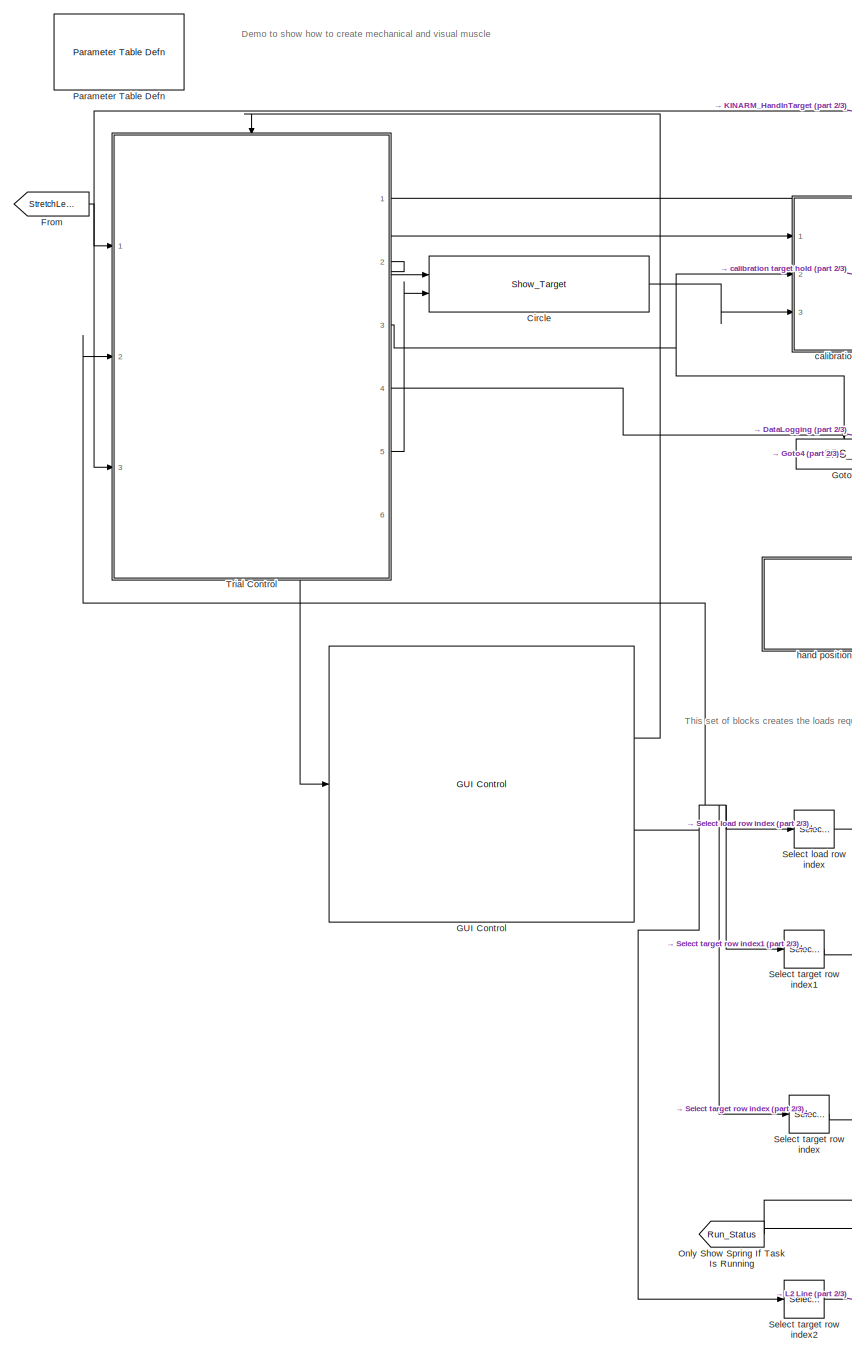
[diagram: root canvas - part 1/3, left side, full height]
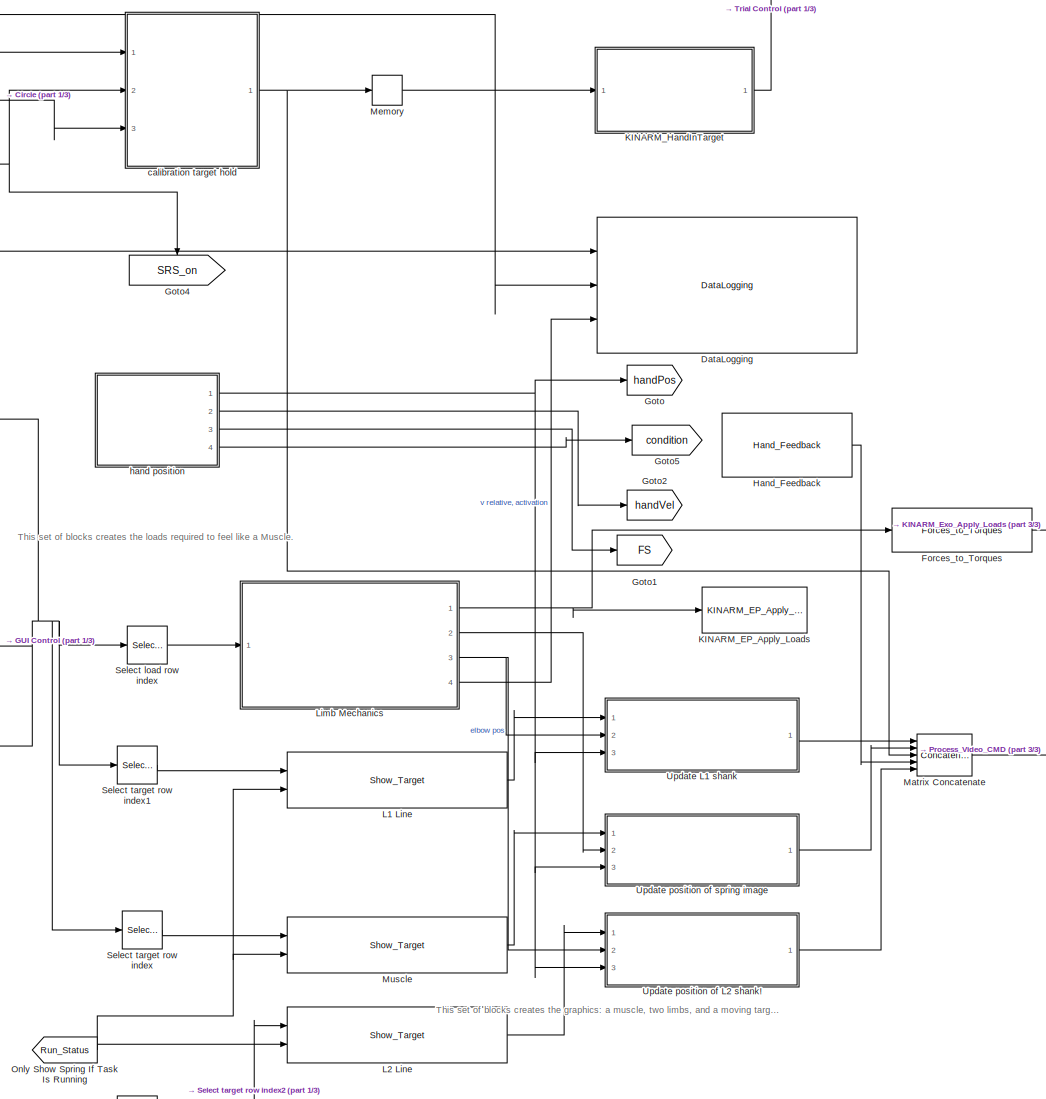
[diagram: root canvas - part 2/3, center side, full height]
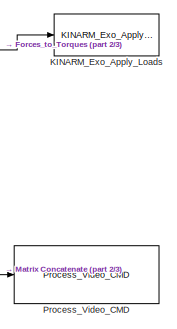
[diagram: root canvas - part 3/3, middle right region]
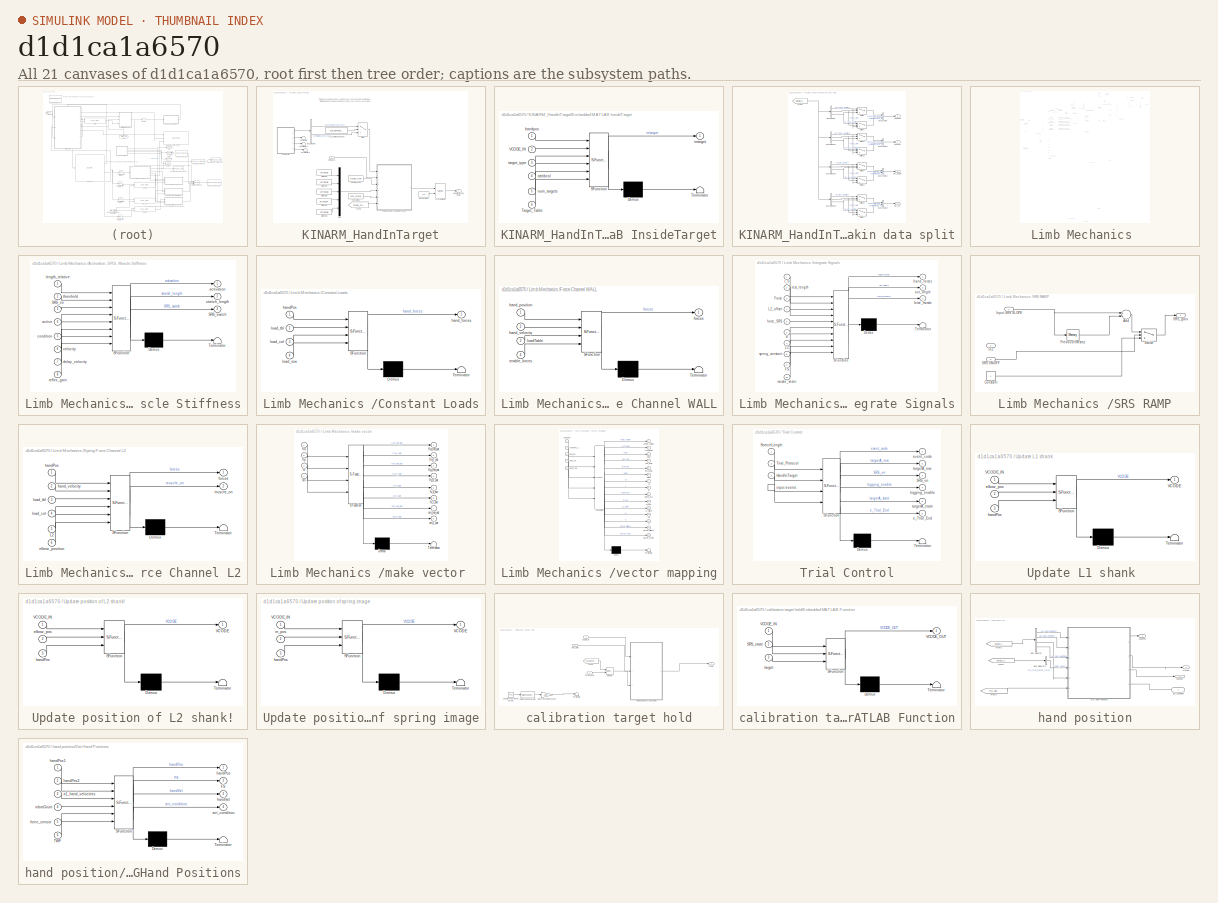
[diagram: thumbnail index - all 21 canvases of the model, root first then tree order]
MODEL slx_d1d1ca1a6570
KIND model
CONFIG AbsTol = auto
CONFIG EnableMultiTasking = on
CONFIG FixedStep = BKIN_STEP_TIME
CONFIG MaxStep = auto
CONFIG MinStep = auto
CONFIG RelTol = 1e-3
CONFIG SampleTimeConstraint = Unconstrained
CONFIG Solver = ode4
CONFIG SolverName = ode4
CONFIG StartFcn =  warndlg('Dexterit-E models cannot run under simulation. Please compile your model and run it from within Dexterit-E.');set_param(bdroot,'SimulationCommand','stop')
CONFIG StartTime = 0.0
CONFIG StopTime = inf
WORKSPACE source: mxarray member
WORKSPACE ACTIVE = 4
WORKSPACE AMPLITUDE = 7
WORKSPACE BASE_STIFFNESS = 12
WORKSPACE BKIN_KINEMATIC_FRAME_SIZE = 400
WORKSPACE BKIN_STEP_TIME = 0.00025
WORKSPACE COLOR_2 = 5
WORKSPACE CONDITION = 3
WORKSPACE DELAY_POST_TRIAL = 4
WORKSPACE DURATION = 5
WORKSPACE E_END_TRIAL = 2
WORKSPACE E_HAND_OUT = 4
WORKSPACE E_NO_EVENT = 0
WORKSPACE E_SHOW_TARGET = 3
WORKSPACE E_SRS_ON = 6
WORKSPACE E_START_TRIAL = 5
WORKSPACE E_TARGET_REACHED = 1
WORKSPACE HAND_OUT_TIME = 6
WORKSPACE IMAGE = 3
WORKSPACE INSERT_OFFSET = 8
WORKSPACE L1_LENGTH = 6
WORKSPACE L1_LINE = 7
WORKSPACE L2_LENGTH = 7
WORKSPACE L2_LINE = 8
WORKSPACE LOAD = 2
WORKSPACE MOVE_THRESHOLD = 10
WORKSPACE MUSCLE = 1
WORKSPACE MUSCLE_LENGTH = 1
WORKSPACE REFLEX = 9
WORKSPACE REFLEX_GAIN = 5
WORKSPACE RESTING_FORCE = 2
WORKSPACE SPEED = 6
WORKSPACE SPRING_X = 1
WORKSPACE SPRING_Y = 2
WORKSPACE SRS_GAIN = 13
WORKSPACE TARGET_1 = 3
WORKSPACE THICKNESS = 4
WORKSPACE V_MAX = 3
WORKSPACE WALL_DAMPING = 11
WORKSPACE WALL_STIFFNESS = 9
WORKSPACE activation = 1
WORKSPACE col_x = 1
WORKSPACE col_y = 2
BLOCK [Reference] Circle  REF=Video/Show_Target
  Ports = [2, 1]
  SourceBlock = Video/Show_Target
  SourceType = Show_Target
BLOCK [Reference] DataLogging  REF=General/DataLogging
  Ports = [3]
  SourceBlock = General/DataLogging
  SourceType = DataLogging
BLOCK [Reference] Forces_to_Torques  REF=KINARM_loads/Forces_to_Torques
  Ports = [1, 1]
  SourceBlock = KINARM_loads/Forces_to_Torques
  SourceType = Forces_to_Torques
BLOCK [From] From
  GotoTag = StretchLength
  TagVisibility = global
BLOCK [Reference] GUI Control  REF=General/GUI Control
  Ports = [1, 2]
  SourceBlock = General/GUI Control
  SourceType = GUI Control
BLOCK [Goto] Goto
  GotoTag = handPos
  TagVisibility = global
BLOCK [Goto] Goto1
  GotoTag = FS
  TagVisibility = global
BLOCK [Goto] Goto2
  GotoTag = handVel
  TagVisibility = global
BLOCK [Goto] Goto4
  GotoTag = SRS_on
  TagVisibility = global
BLOCK [Goto] Goto5
  GotoTag = condition
  TagVisibility = global
BLOCK [Reference] Hand_Feedback  REF=KINARM_general/Hand_Feedback
  Ports = [0, 1]
  SourceBlock = KINARM_general/Hand_Feedback
  SourceType = Hand_Feedback
BLOCK [Reference] KINARM_EP_Apply_Loads  REF=KINARM_EP_loads/KINARM_EP_Apply_Loads
  Ports = [1]
  SourceBlock = KINARM_EP_loads/KINARM_EP_Apply_Loads
  SourceType = KINARM_EP_Apply_Loads
BLOCK [Reference] KINARM_Exo_Apply_Loads  REF=KINARM_loads/KINARM_Exo_Apply_Loads
  Ports = [1]
  SourceBlock = KINARM_loads/KINARM_Exo_Apply_Loads
  SourceType = KINARM_Exo_Apply_Loads
BLOCK [SubSystem] KINARM_HandInTarget
  AncestorBlock = KINARM_general/KINARM_HandInTarget
  Ports = [1, 1]
  RequestExecContextInheritance = off
BLOCK [Selector] KINARM_HandInTarget/Array Selector
  IndexOptions = Select all,Index vector (port)
  Indices = -1,1
  InputPortWidth = 3
  NumberOfDimensions = 2
  OutputSizes = slselsubs([(-2),(-2)],1),slselsubs([(-2),(-2)],2)
  Ports = [2, 1]
BLOCK [BusSelector] KINARM_HandInTarget/Bus Selector
  OutputAsBus = off
  OutputSignals = assessment_hand_pos,contralateral_hand_pos
  Ports = [1, 2]
BLOCK [SubSystem] KINARM_HandInTarget/Embedded MATLAB InsideTarget
  ErrorFcn = Stateflow.Translate.translate
  PermitHierarchicalResolution = ExplicitOnly
  Ports = [6, 1]
  RTWFileNameOpts = Use function name
  RTWSystemCode = Nonreusable function
  RequestExecContextInheritance = off
  SFBlockType = MATLAB Function
  TreatAsAtomicUnit = on
BLOCK [Demux] KINARM_HandInTarget/Embedded MATLAB InsideTarget/ Demux 
  Outputs = 1
  Ports = [1, 1]
BLOCK [S-Function] KINARM_HandInTarget/Embedded MATLAB InsideTarget/ SFunction 
  EnableBusSupport = on
  FunctionName = sf_sfun
  PortCounts = [6 2]
  Ports = [6, 2]
  SFcnIsStateOwnerBlock = off
  SFunctionDeploymentMode = off
  Tag = Stateflow S-Function 9
BLOCK [Terminator] KINARM_HandInTarget/Embedded MATLAB InsideTarget/ Terminator 
BLOCK [Inport] KINARM_HandInTarget/Embedded MATLAB InsideTarget/Target_Table
  IconDisplay = Port number
  Port = 6
BLOCK [Inport] KINARM_HandInTarget/Embedded MATLAB InsideTarget/VCODE_IN
  IconDisplay = Port number
  Port = 2
BLOCK [Inport] KINARM_HandInTarget/Embedded MATLAB InsideTarget/attribcol
  IconDisplay = Port number
  Port = 4
BLOCK [Inport] KINARM_HandInTarget/Embedded MATLAB InsideTarget/handpos
  IconDisplay = Port number
BLOCK [Outport] KINARM_HandInTarget/Embedded MATLAB InsideTarget/intarget
  IconDisplay = Port number
BLOCK [Inport] KINARM_HandInTarget/Embedded MATLAB InsideTarget/num_targets
  IconDisplay = Port number
  Port = 5
BLOCK [Inport] KINARM_HandInTarget/Embedded MATLAB InsideTarget/target_type
  IconDisplay = Port number
  Port = 3
BLOCK [From] KINARM_HandInTarget/From1
  CloseFcn = tagdialog Close
  GotoTag = Target_Table
  TagVisibility = global
BLOCK [Outport] KINARM_HandInTarget/HandInTarget_Vector
  IconDisplay = Port number
BLOCK [Mux] KINARM_HandInTarget/Mux
  DisplayOption = bar
  Inputs = 5
  Ports = [5, 1]
BLOCK [Constant] KINARM_HandInTarget/Selected States
  Value = [1]
BLOCK [Switch] KINARM_HandInTarget/Switch
  Criteria = u2 > Threshold
  InputSameDT = off
  SaturateOnIntegerOverflow = off
BLOCK [Constant] KINARM_HandInTarget/Target_Type
  Value = target_type
BLOCK [Terminator] KINARM_HandInTarget/Terminator
BLOCK [Terminator] KINARM_HandInTarget/Terminator1
BLOCK [Terminator] KINARM_HandInTarget/Terminator2
BLOCK [Constant] KINARM_HandInTarget/Use_Dominant_Hand?
  Value = use_dominant_hand
BLOCK [Inport] KINARM_HandInTarget/VCODE_IN 
  IconDisplay = Port number
BLOCK [Constant] KINARM_HandInTarget/attribcol1
  Value = attribcol1
BLOCK [Constant] KINARM_HandInTarget/attribcol2
  Value = attribcol2
BLOCK [Constant] KINARM_HandInTarget/attribcol3
  Value = attribcol3
BLOCK [Constant] KINARM_HandInTarget/attribcol4
  Value = attribcol4
BLOCK [Constant] KINARM_HandInTarget/attribcol5
  Value = attribcol5
BLOCK [SubSystem] KINARM_HandInTarget/kin data split
  Ports = [0, 4]
  RequestExecContextInheritance = off
BLOCK [BusCreator] KINARM_HandInTarget/kin data split/Bus Creator
  DisplayOption = bar
  InheritFromInputs = on
  Inputs = 2
  Ports = [2, 1]
BLOCK [BusCreator] KINARM_HandInTarget/kin data split/Bus Creator1
  DisplayOption = bar
  InheritFromInputs = on
  Inputs = 2
  Ports = [2, 1]
BLOCK [BusCreator] KINARM_HandInTarget/kin data split/Bus Creator2
  DisplayOption = bar
  InheritFromInputs = on
  Inputs = 2
  Ports = [2, 1]
BLOCK [BusCreator] KINARM_HandInTarget/kin data split/Bus Creator3
  DisplayOption = bar
  InheritFromInputs = on
  Inputs = 2
  Ports = [2, 1]
BLOCK [BusSelector] KINARM_HandInTarget/kin data split/Bus Selector
  OutputAsBus = off
  OutputSignals = Robot2.a2_hand_position,KINDataGeneral.active_arm,Robot1.a1_hand_position
  Ports = [1, 3]
BLOCK [BusSelector] KINARM_HandInTarget/kin data split/Bus Selector1
  OutputAsBus = off
  OutputSignals = Robot2.a2_hand_velocities,KINDataGeneral.active_arm,Robot1.a1_hand_velocities
  Ports = [1, 3]
BLOCK [BusSelector] KINARM_HandInTarget/kin data split/Bus Selector2
  OutputAsBus = off
  OutputSignals = Robot2.a2_link_angles,KINDataGeneral.active_arm,Robot1.a1_link_angles
  Ports = [1, 3]
BLOCK [BusSelector] KINARM_HandInTarget/kin data split/Bus Selector3
  OutputAsBus = off
  OutputSignals = Robot2.a2_link_velocities,KINDataGeneral.active_arm,Robot1.a1_link_velocities
  Ports = [1, 3]
BLOCK [From] KINARM_HandInTarget/kin data split/From1
  CloseFcn = tagdialog Close
  GotoTag = KINdata_bus
  TagVisibility = global
BLOCK [Switch] KINARM_HandInTarget/kin data split/Switch
  Criteria = u2 > Threshold
  InputSameDT = off
  SaturateOnIntegerOverflow = off
  Threshold = 1
BLOCK [Switch] KINARM_HandInTarget/kin data split/Switch1
  Criteria = u2 > Threshold
  InputSameDT = off
  SaturateOnIntegerOverflow = off
  Threshold = 1
BLOCK [Switch] KINARM_HandInTarget/kin data split/Switch2
  Criteria = u2 > Threshold
  InputSameDT = off
  SaturateOnIntegerOverflow = off
  Threshold = 1
BLOCK [Switch] KINARM_HandInTarget/kin data split/Switch3
  Criteria = u2 > Threshold
  InputSameDT = off
  SaturateOnIntegerOverflow = off
  Threshold = 1
BLOCK [Switch] KINARM_HandInTarget/kin data split/Switch4
  Criteria = u2 > Threshold
  InputSameDT = off
  SaturateOnIntegerOverflow = off
  Threshold = 1
BLOCK [Switch] KINARM_HandInTarget/kin data split/Switch5
  Criteria = u2 > Threshold
  InputSameDT = off
  SaturateOnIntegerOverflow = off
  Threshold = 1
BLOCK [Switch] KINARM_HandInTarget/kin data split/Switch6
  Criteria = u2 > Threshold
  InputSameDT = off
  SaturateOnIntegerOverflow = off
  Threshold = 1
BLOCK [Switch] KINARM_HandInTarget/kin data split/Switch7
  Criteria = u2 > Threshold
  InputSameDT = off
  SaturateOnIntegerOverflow = off
  Threshold = 1
BLOCK [Outport] KINARM_HandInTarget/kin data split/hand pos
  IconDisplay = Port number
BLOCK [Outport] KINARM_HandInTarget/kin data split/hand vel
  IconDisplay = Port number
  Port = 2
BLOCK [Outport] KINARM_HandInTarget/kin data split/link_angles
  IconDisplay = Port number
  Port = 3
BLOCK [Outport] KINARM_HandInTarget/kin data split/link_vel
  IconDisplay = Port number
  Port = 4
BLOCK [Constant] KINARM_HandInTarget/num_states
  Value = num_states
BLOCK [Reference] L1 Line  REF=Video/Show_Target
  Ports = [2, 1]
  SourceBlock = Video/Show_Target
  SourceType = Show_Target
BLOCK [Reference] L2 Line  REF=Video/Show_Target
  Ports = [2, 1]
  SourceBlock = Video/Show_Target
  SourceType = Show_Target
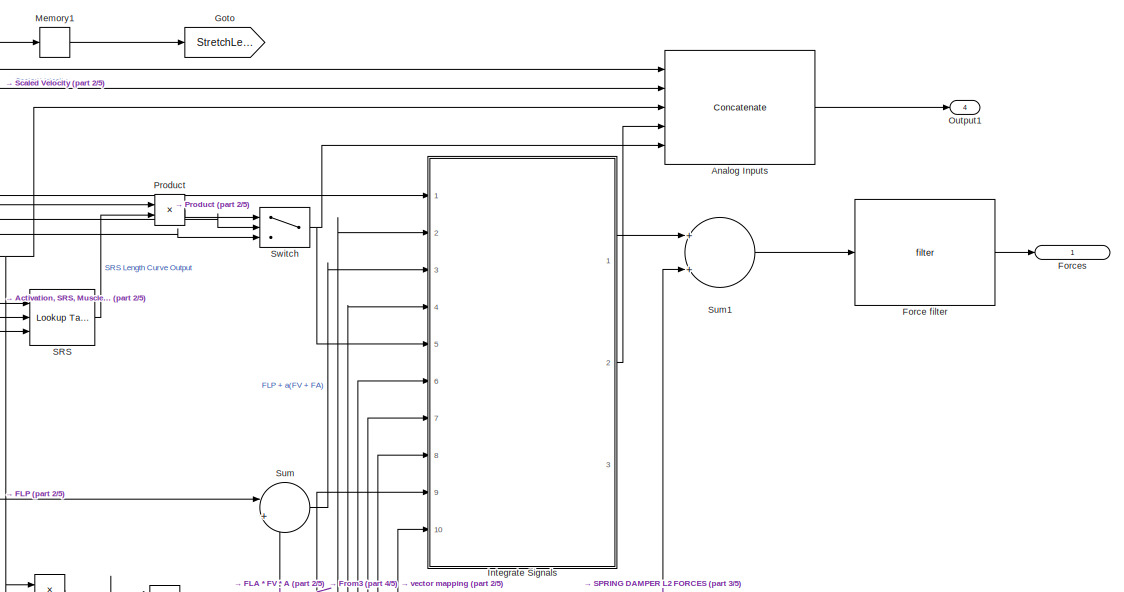
[diagram: Limb Mechanics  - part 1/5, top right region]
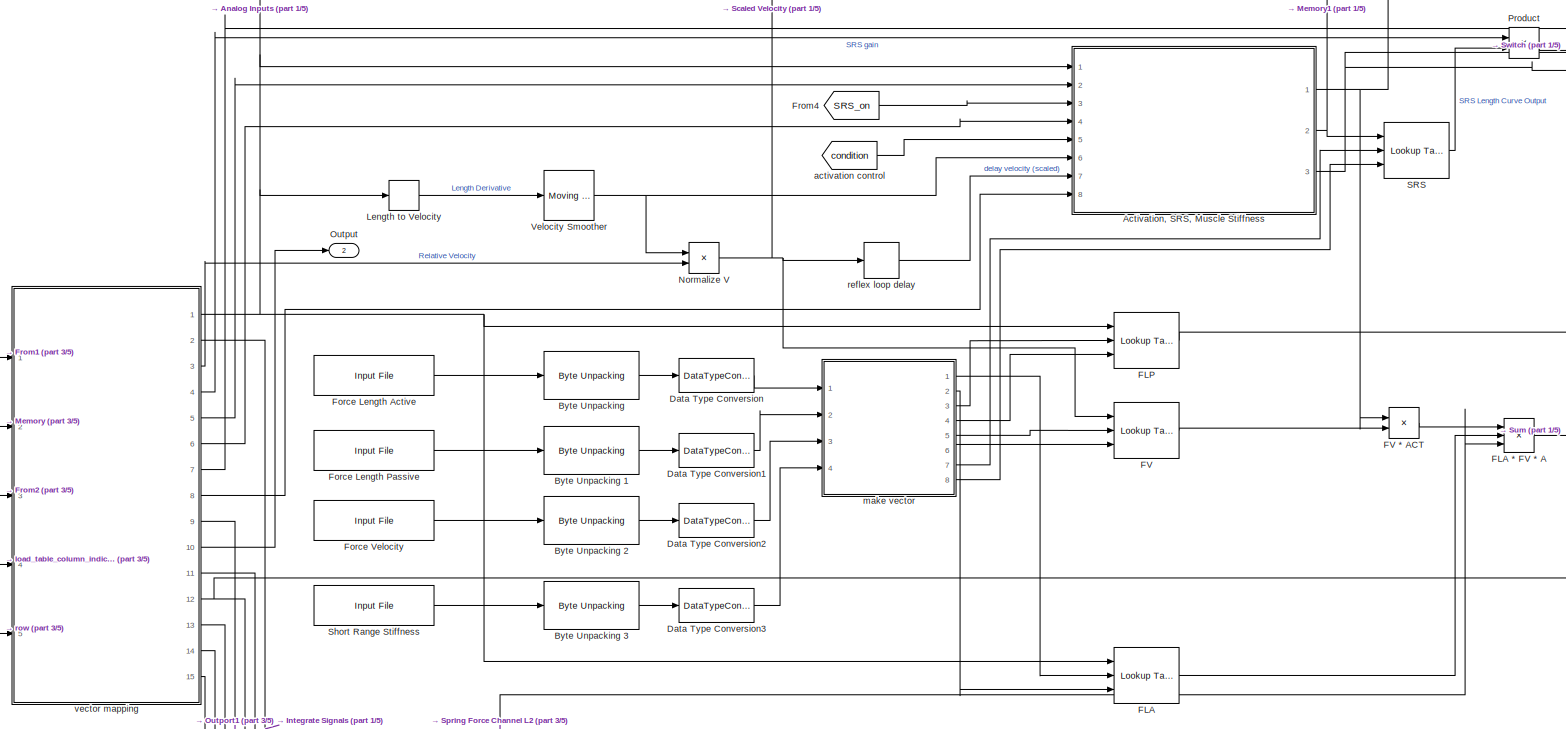
[diagram: Limb Mechanics  - part 2/5, top center region]
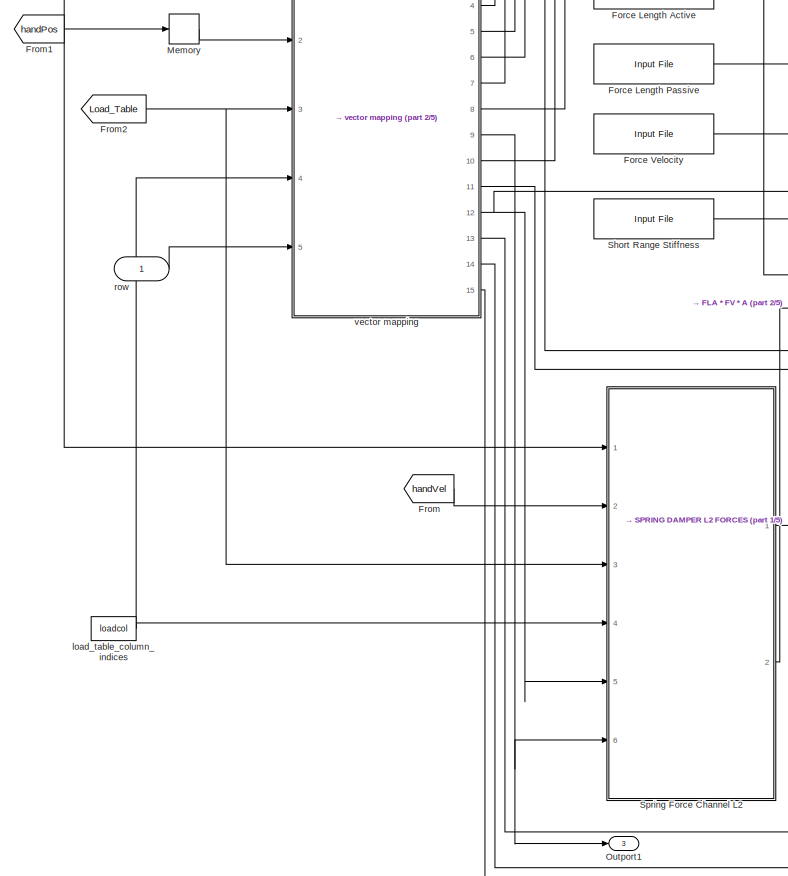
[diagram: Limb Mechanics  - part 3/5, middle left region]
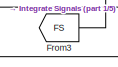
[diagram: Limb Mechanics  - part 4/5, middle right region]
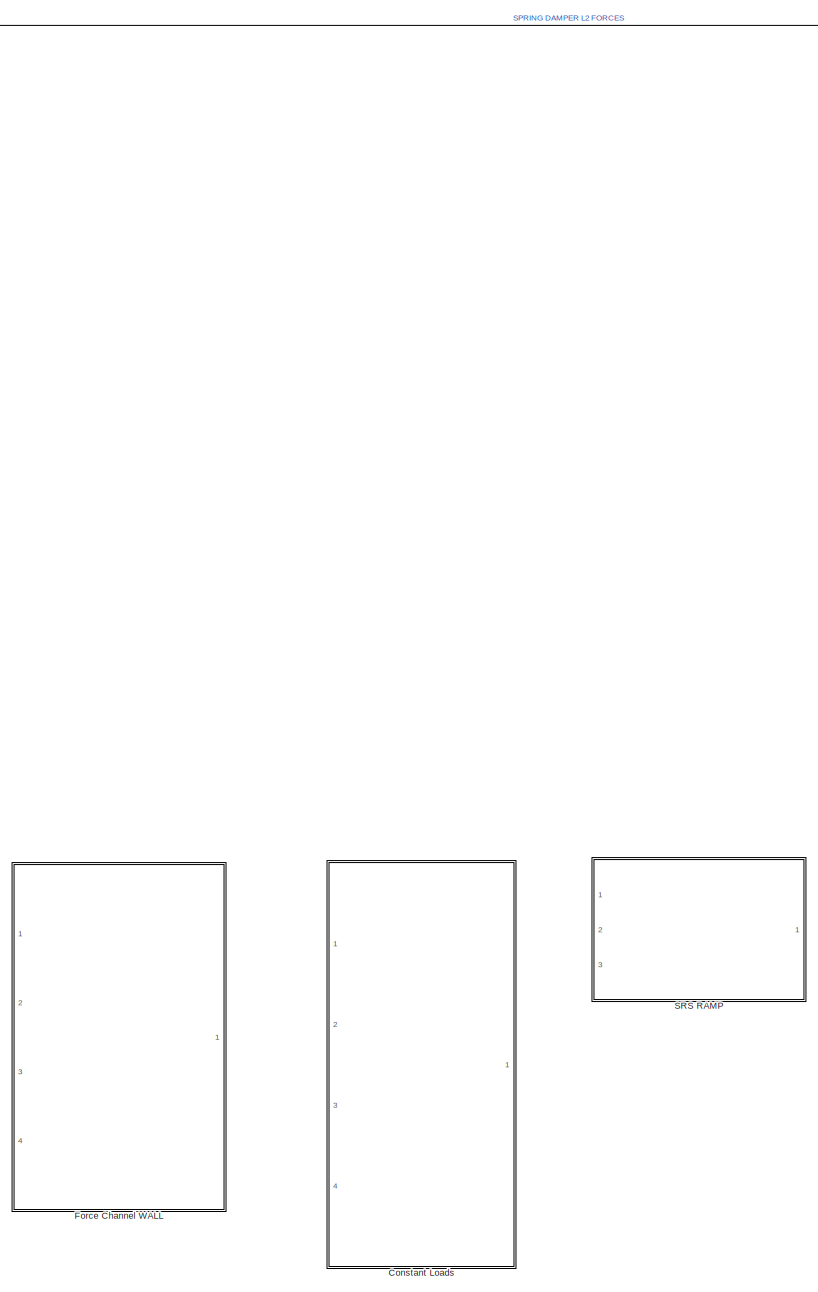
[diagram: Limb Mechanics  - part 5/5, bottom center region]
BLOCK [SubSystem] Limb Mechanics 
  Ports = [1, 4]
  RequestExecContextInheritance = off
BLOCK [SubSystem] Limb Mechanics /Activation, SRS, Muscle Stiffness
  ErrorFcn = Stateflow.Translate.translate
  PermitHierarchicalResolution = ExplicitOnly
  Ports = [8, 3]
  RequestExecContextInheritance = off
  SFBlockType = MATLAB Function
  TreatAsAtomicUnit = on
BLOCK [Demux] Limb Mechanics /Activation, SRS, Muscle Stiffness/ Demux 
  Outputs = 1
  Ports = [1, 1]
BLOCK [S-Function] Limb Mechanics /Activation, SRS, Muscle Stiffness/ SFunction 
  EnableBusSupport = on
  FunctionName = sf_sfun
  PortCounts = [8 4]
  Ports = [8, 4]
  SFcnIsStateOwnerBlock = off
  SFunctionDeploymentMode = off
  Tag = Stateflow S-Function 12
BLOCK [Terminator] Limb Mechanics /Activation, SRS, Muscle Stiffness/ Terminator 
BLOCK [Inport] Limb Mechanics /Activation, SRS, Muscle Stiffness/SRS_on
  IconDisplay = Port number
  Port = 3
BLOCK [Outport] Limb Mechanics /Activation, SRS, Muscle Stiffness/SRS_switch
  IconDisplay = Port number
  Port = 3
BLOCK [Outport] Limb Mechanics /Activation, SRS, Muscle Stiffness/activation
  IconDisplay = Port number
BLOCK [Inport] Limb Mechanics /Activation, SRS, Muscle Stiffness/active
  IconDisplay = Port number
  Port = 4
BLOCK [Inport] Limb Mechanics /Activation, SRS, Muscle Stiffness/condition
  IconDisplay = Port number
  Port = 5
BLOCK [Inport] Limb Mechanics /Activation, SRS, Muscle Stiffness/delay_velocity
  IconDisplay = Port number
  Port = 7
BLOCK [Inport] Limb Mechanics /Activation, SRS, Muscle Stiffness/length_relative
  IconDisplay = Port number
BLOCK [Inport] Limb Mechanics /Activation, SRS, Muscle Stiffness/reflex_gain
  IconDisplay = Port number
  Port = 8
BLOCK [Outport] Limb Mechanics /Activation, SRS, Muscle Stiffness/stretch_length
  IconDisplay = Port number
  Port = 2
BLOCK [Inport] Limb Mechanics /Activation, SRS, Muscle Stiffness/threshold
  IconDisplay = Port number
  Port = 2
BLOCK [Inport] Limb Mechanics /Activation, SRS, Muscle Stiffness/velocity
  IconDisplay = Port number
  Port = 6
BLOCK [Concatenate] Limb Mechanics /Analog Inputs
  ConcatenateDimension = 2
  Mode = Multidimensional array
  NumInputs = 5
  Ports = [5, 1]
BLOCK [Reference] Limb Mechanics /Byte Unpacking   REF=xpcutilitieslib/Byte Unpacking 
  Ports = [1, 1]
  SourceBlock = xpcutilitieslib/Byte Unpacking
  SourceProductBaseCode = XP
  SourceProductName = Simulink Real-Time
  SourceType = xpcbytepacking
BLOCK [Reference] Limb Mechanics /Byte Unpacking 1  REF=xpcutilitieslib/Byte Unpacking 
  Ports = [1, 1]
  SourceBlock = xpcutilitieslib/Byte Unpacking
  SourceProductBaseCode = XP
  SourceProductName = Simulink Real-Time
  SourceType = xpcbytepacking
BLOCK [Reference] Limb Mechanics /Byte Unpacking 2  REF=xpcutilitieslib/Byte Unpacking 
  Ports = [1, 1]
  SourceBlock = xpcutilitieslib/Byte Unpacking
  SourceProductBaseCode = XP
  SourceProductName = Simulink Real-Time
  SourceType = xpcbytepacking
BLOCK [Reference] Limb Mechanics /Byte Unpacking 3  REF=xpcutilitieslib/Byte Unpacking 
  Ports = [1, 1]
  SourceBlock = xpcutilitieslib/Byte Unpacking
  SourceProductBaseCode = XP
  SourceProductName = Simulink Real-Time
  SourceType = xpcbytepacking
BLOCK [SubSystem] Limb Mechanics /Constant Loads
  Commented = on
  ErrorFcn = Stateflow.Translate.translate
  PermitHierarchicalResolution = ExplicitOnly
  Ports = [4, 1]
  RequestExecContextInheritance = off
  SFBlockType = MATLAB Function
  TreatAsAtomicUnit = on
BLOCK [Demux] Limb Mechanics /Constant Loads/ Demux 
  Outputs = 1
  Ports = [1, 1]
BLOCK [S-Function] Limb Mechanics /Constant Loads/ SFunction 
  EnableBusSupport = on
  FunctionName = sf_sfun
  PortCounts = [4 2]
  Ports = [4, 2]
  SFcnIsStateOwnerBlock = off
  SFunctionDeploymentMode = off
  Tag = Stateflow S-Function 14
BLOCK [Terminator] Limb Mechanics /Constant Loads/ Terminator 
BLOCK [Inport] Limb Mechanics /Constant Loads/handPos
  IconDisplay = Port number
BLOCK [Outport] Limb Mechanics /Constant Loads/hand_forces
  IconDisplay = Port number
BLOCK [Inport] Limb Mechanics /Constant Loads/load_col
  IconDisplay = Port number
  Port = 3
BLOCK [Inport] Limb Mechanics /Constant Loads/load_row
  IconDisplay = Port number
  Port = 4
BLOCK [Inport] Limb Mechanics /Constant Loads/load_tbl
  IconDisplay = Port number
  Port = 2
BLOCK [DataTypeConversion] Limb Mechanics /Data Type Conversion
  RndMeth = Floor
  SaturateOnIntegerOverflow = off
BLOCK [DataTypeConversion] Limb Mechanics /Data Type Conversion1
  RndMeth = Floor
  SaturateOnIntegerOverflow = off
BLOCK [DataTypeConversion] Limb Mechanics /Data Type Conversion2
  RndMeth = Floor
  SaturateOnIntegerOverflow = off
BLOCK [DataTypeConversion] Limb Mechanics /Data Type Conversion3
  RndMeth = Floor
  SaturateOnIntegerOverflow = off
BLOCK [Reference] Limb Mechanics /FLA  REF=simulink/Lookup
Tables/Lookup
Table
Dynamic
  Ports = [3, 1]
  SourceBlock = simulink/Lookup\nTables/Lookup\nTable\nDynamic
  SourceProductBaseCode = SL
  SourceProductName = Simulink
  SourceType = Lookup Table Dynamic
BLOCK [Product] Limb Mechanics /FLA * FV * A
  InputSameDT = off
  Inputs = 3
  OutDataTypeStr = Inherit: Inherit via internal rule
  Ports = [3, 1]
  RndMeth = Floor
  SaturateOnIntegerOverflow = off
BLOCK [Reference] Limb Mechanics /FLP  REF=simulink/Lookup
Tables/Lookup
Table
Dynamic
  Ports = [3, 1]
  SourceBlock = simulink/Lookup\nTables/Lookup\nTable\nDynamic
  SourceProductBaseCode = SL
  SourceProductName = Simulink
  SourceType = Lookup Table Dynamic
BLOCK [Reference] Limb Mechanics /FV   REF=simulink/Lookup
Tables/Lookup
Table
Dynamic
  Ports = [3, 1]
  SourceBlock = simulink/Lookup\nTables/Lookup\nTable\nDynamic
  SourceProductBaseCode = SL
  SourceProductName = Simulink
  SourceType = Lookup Table Dynamic
BLOCK [Product] Limb Mechanics /FV * ACT
  InputSameDT = off
  OutDataTypeStr = Inherit: Inherit via internal rule
  Ports = [2, 1]
  RndMeth = Floor
  SaturateOnIntegerOverflow = off
BLOCK [SubSystem] Limb Mechanics /Force Channel WALL
  Commented = on
  ErrorFcn = Stateflow.Translate.translate
  PermitHierarchicalResolution = ExplicitOnly
  Ports = [4, 1]
  RequestExecContextInheritance = off
  SFBlockType = MATLAB Function
  TreatAsAtomicUnit = on
BLOCK [Demux] Limb Mechanics /Force Channel WALL/ Demux 
  Outputs = 1
  Ports = [1, 1]
BLOCK [S-Function] Limb Mechanics /Force Channel WALL/ SFunction 
  EnableBusSupport = on
  FunctionName = sf_sfun
  PortCounts = [4 2]
  Ports = [4, 2]
  SFcnIsStateOwnerBlock = off
  SFunctionDeploymentMode = off
  Tag = Stateflow S-Function 13
BLOCK [Terminator] Limb Mechanics /Force Channel WALL/ Terminator 
BLOCK [Inport] Limb Mechanics /Force Channel WALL/enable_forces
  IconDisplay = Port number
  Port = 4
BLOCK [Outport] Limb Mechanics /Force Channel WALL/forces
  IconDisplay = Port number
BLOCK [Inport] Limb Mechanics /Force Channel WALL/hand_position
  IconDisplay = Port number
BLOCK [Inport] Limb Mechanics /Force Channel WALL/hand_velocity
  IconDisplay = Port number
  Port = 2
BLOCK [Inport] Limb Mechanics /Force Channel WALL/loadTable
  IconDisplay = Port number
  Port = 3
BLOCK [Reference] Limb Mechanics /Force Length Active  REF=KINARM_IO/Input File
  Ports = [0, 1]
  SourceBlock = KINARM_IO/Input File
BLOCK [Reference] Limb Mechanics /Force Length Passive  REF=KINARM_IO/Input File
  Ports = [0, 1]
  SourceBlock = KINARM_IO/Input File
BLOCK [Reference] Limb Mechanics /Force Velocity   REF=KINARM_IO/Input File
  Ports = [0, 1]
  SourceBlock = KINARM_IO/Input File
BLOCK [Reference] Limb Mechanics /Force filter  REF=KINARM_EP_loads/Velocity_Loads_EP/filter
  Ports = [1, 1]
  SourceBlock = KINARM_EP_loads/Velocity_Loads_EP/filter
  SourceType = SubSystem
BLOCK [Outport] Limb Mechanics /Forces
  IconDisplay = Port number
BLOCK [From] Limb Mechanics /From
  GotoTag = handVel
  TagVisibility = global
BLOCK [From] Limb Mechanics /From1
  GotoTag = handPos
  TagVisibility = global
BLOCK [From] Limb Mechanics /From2
  CloseFcn = tagdialog Close
  GotoTag = Load_Table
  TagVisibility = global
BLOCK [From] Limb Mechanics /From3
  GotoTag = FS
  TagVisibility = global
BLOCK [From] Limb Mechanics /From4
  GotoTag = SRS_on
  TagVisibility = global
BLOCK [Goto] Limb Mechanics /Goto
  GotoTag = StretchLength
  TagVisibility = global
BLOCK [SubSystem] Limb Mechanics /Integrate Signals
  ErrorFcn = Stateflow.Translate.translate
  PermitHierarchicalResolution = ExplicitOnly
  Ports = [10, 3]
  RequestExecContextInheritance = off
  SFBlockType = MATLAB Function
  TreatAsAtomicUnit = on
BLOCK [Demux] Limb Mechanics /Integrate Signals/ Demux 
  Outputs = 1
  Ports = [1, 1]
BLOCK [S-Function] Limb Mechanics /Integrate Signals/ SFunction 
  EnableBusSupport = on
  FunctionName = sf_sfun
  PortCounts = [10 4]
  Ports = [10, 4]
  SFcnIsStateOwnerBlock = off
  SFunctionDeploymentMode = off
  Tag = Stateflow S-Function 5
BLOCK [Terminator] Limb Mechanics /Integrate Signals/ Terminator 
BLOCK [Inport] Limb Mechanics /Integrate Signals/FS
  IconDisplay = Port number
  Port = 9
BLOCK [Inport] Limb Mechanics /Integrate Signals/Force
  IconDisplay = Port number
  Port = 3
BLOCK [Inport] Limb Mechanics /Integrate Signals/L2
  IconDisplay = Port number
  Port = 7
BLOCK [Inport] Limb Mechanics /Integrate Signals/L2_offset
  IconDisplay = Port number
  Port = 4
BLOCK [Inport] Limb Mechanics /Integrate Signals/d
  IconDisplay = Port number
  Port = 6
BLOCK [Inport] Limb Mechanics /Integrate Signals/force_SRS
  IconDisplay = Port number
  Port = 5
BLOCK [Outport] Limb Mechanics /Integrate Signals/force_muscle
  IconDisplay = Port number
  Port = 3
BLOCK [Outport] Limb Mechanics /Integrate Signals/hand_forces
  IconDisplay = Port number
BLOCK [Inport] Limb Mechanics /Integrate Signals/muscle_vector
  IconDisplay = Port number
  Port = 10
BLOCK [Outport] Limb Mechanics /Integrate Signals/out_angle
  IconDisplay = Port number
  Port = 2
BLOCK [Inport] Limb Mechanics /Integrate Signals/rest_length
  IconDisplay = Port number
  Port = 2
BLOCK [Inport] Limb Mechanics /Integrate Signals/spring_constant
  IconDisplay = Port number
  Port = 8
BLOCK [Inport] Limb Mechanics /Integrate Signals/t_0
  IconDisplay = Port number
BLOCK [Derivative] Limb Mechanics /Length to Velocity
BLOCK [Memory] Limb Mechanics /Memory
BLOCK [Memory] Limb Mechanics /Memory1
BLOCK [Product] Limb Mechanics /Normalize V
  InputSameDT = off
  Inputs = */
  OutDataTypeStr = Inherit: Inherit via internal rule
  Ports = [2, 1]
  RndMeth = Floor
  SaturateOnIntegerOverflow = off
BLOCK [Outport] Limb Mechanics /Outport1
  IconDisplay = Port number
  Port = 3
BLOCK [Outport] Limb Mechanics /Output
  IconDisplay = Port number
  Port = 2
BLOCK [Outport] Limb Mechanics /Output1
  IconDisplay = Port number
  Port = 4
BLOCK [Product] Limb Mechanics /Product
  InputSameDT = off
  OutDataTypeStr = Inherit: Inherit via internal rule
  Ports = [2, 1]
  RndMeth = Floor
  SaturateOnIntegerOverflow = off
BLOCK [Reference] Limb Mechanics /SRS  REF=simulink/Lookup
Tables/Lookup
Table
Dynamic
  Ports = [3, 1]
  SourceBlock = simulink/Lookup\nTables/Lookup\nTable\nDynamic
  SourceProductBaseCode = SL
  SourceProductName = Simulink
  SourceType = Lookup Table Dynamic
BLOCK [SubSystem] Limb Mechanics /SRS RAMP
  Commented = on
  Ports = [3, 1]
  RequestExecContextInheritance = off
  TreatAsAtomicUnit = on
BLOCK [Sum] Limb Mechanics /SRS RAMP/Add
  InputSameDT = off
  OutDataTypeStr = Inherit: Inherit via internal rule
  Ports = [2, 1]
  SaturateOnIntegerOverflow = off
BLOCK [Constant] Limb Mechanics /SRS RAMP/Constant
BLOCK [Inport] Limb Mechanics /SRS RAMP/In2
  IconDisplay = Port number
  Port = 2
BLOCK [Inport] Limb Mechanics /SRS RAMP/Input SRS SLOPE
  IconDisplay = Port number
BLOCK [Memory] Limb Mechanics /SRS RAMP/Previous timestep
  InitialCondition = 1
BLOCK [Inport] Limb Mechanics /SRS RAMP/SRS ON//OFF
  IconDisplay = Port number
  Port = 3
BLOCK [Outport] Limb Mechanics /SRS RAMP/SRS_gain 
  IconDisplay = Port number
BLOCK [Switch] Limb Mechanics /SRS RAMP/Switch
  Criteria = u2 > Threshold
  InputSameDT = off
  SaturateOnIntegerOverflow = off
BLOCK [Reference] Limb Mechanics /Short Range Stiffness  REF=KINARM_IO/Input File
  Ports = [0, 1]
  SourceBlock = KINARM_IO/Input File
BLOCK [SubSystem] Limb Mechanics /Spring Force Channel L2
  ErrorFcn = Stateflow.Translate.translate
  PermitHierarchicalResolution = ExplicitOnly
  Ports = [6, 2]
  RequestExecContextInheritance = off
  SFBlockType = MATLAB Function
  TreatAsAtomicUnit = on
BLOCK [Demux] Limb Mechanics /Spring Force Channel L2/ Demux 
  Outputs = 1
  Ports = [1, 1]
BLOCK [S-Function] Limb Mechanics /Spring Force Channel L2/ SFunction 
  EnableBusSupport = on
  FunctionName = sf_sfun
  PortCounts = [6 3]
  Ports = [6, 3]
  SFcnIsStateOwnerBlock = off
  SFunctionDeploymentMode = off
  Tag = Stateflow S-Function 11
BLOCK [Terminator] Limb Mechanics /Spring Force Channel L2/ Terminator 
BLOCK [Inport] Limb Mechanics /Spring Force Channel L2/L2
  IconDisplay = Port number
  Port = 5
BLOCK [Inport] Limb Mechanics /Spring Force Channel L2/elbow_position
  IconDisplay = Port number
  Port = 6
BLOCK [Outport] Limb Mechanics /Spring Force Channel L2/forces
  IconDisplay = Port number
BLOCK [Inport] Limb Mechanics /Spring Force Channel L2/handPos
  IconDisplay = Port number
BLOCK [Inport] Limb Mechanics /Spring Force Channel L2/hand_velocity
  IconDisplay = Port number
  Port = 2
BLOCK [Inport] Limb Mechanics /Spring Force Channel L2/load_col
  IconDisplay = Port number
  Port = 4
BLOCK [Inport] Limb Mechanics /Spring Force Channel L2/load_tbl
  IconDisplay = Port number
  Port = 3
BLOCK [Outport] Limb Mechanics /Spring Force Channel L2/muscle_on
  IconDisplay = Port number
  Port = 2
BLOCK [Sum] Limb Mechanics /Sum
  IconShape = round
  InputSameDT = off
  Inputs = |++
  OutDataTypeStr = Inherit: Inherit via internal rule
  Ports = [2, 1]
  SaturateOnIntegerOverflow = off
BLOCK [Sum] Limb Mechanics /Sum1
  InputSameDT = off
  OutDataTypeStr = Inherit: Inherit via internal rule
  Ports = [2, 1]
  SaturateOnIntegerOverflow = off
BLOCK [Switch] Limb Mechanics /Switch
  Criteria = u2 ~= 0
  InputSameDT = off
  SaturateOnIntegerOverflow = off
BLOCK [Reference] Limb Mechanics /Velocity Smoother  REF=dspstat3/Moving
Average
  Ports = [1, 1]
  SourceBlock = dspstat3/Moving\nAverage
  SourceProductBaseCode = DS
  SourceProductName = DSP System Toolbox
  SourceType = dsp.simulink.MovingAverage
BLOCK [From] Limb Mechanics /activation control
  GotoTag = condition
  TagVisibility = global
BLOCK [Constant] Limb Mechanics /load_table_column_indices
  Value = loadcol
BLOCK [SubSystem] Limb Mechanics /make vector 
  ErrorFcn = Stateflow.Translate.translate
  PermitHierarchicalResolution = ExplicitOnly
  Ports = [4, 8]
  RequestExecContextInheritance = off
  SFBlockType = MATLAB Function
  TreatAsAtomicUnit = on
BLOCK [Demux] Limb Mechanics /make vector / Demux 
  Outputs = 1
  Ports = [1, 1]
BLOCK [S-Function] Limb Mechanics /make vector / SFunction 
  EnableBusSupport = on
  FunctionName = sf_sfun
  PortCounts = [4 9]
  Ports = [4, 9]
  SFcnIsStateOwnerBlock = off
  SFunctionDeploymentMode = off
  Tag = Stateflow S-Function 6
BLOCK [Terminator] Limb Mechanics /make vector / Terminator 
BLOCK [Inport] Limb Mechanics /make vector /fla
  IconDisplay = Port number
BLOCK [Outport] Limb Mechanics /make vector /fla_f_out
  IconDisplay = Port number
  Port = 2
BLOCK [Outport] Limb Mechanics /make vector /fla_len_out
  IconDisplay = Port number
BLOCK [Inport] Limb Mechanics /make vector /flp
  IconDisplay = Port number
  Port = 2
BLOCK [Outport] Limb Mechanics /make vector /flp_f_out
  IconDisplay = Port number
  Port = 4
BLOCK [Outport] Limb Mechanics /make vector /flp_len_out
  IconDisplay = Port number
  Port = 3
BLOCK [Inport] Limb Mechanics /make vector /fv
  IconDisplay = Port number
  Port = 3
BLOCK [Outport] Limb Mechanics /make vector /fv_f_out
  IconDisplay = Port number
  Port = 6
BLOCK [Outport] Limb Mechanics /make vector /fv_v_out
  IconDisplay = Port number
  Port = 5
BLOCK [Inport] Limb Mechanics /make vector /srs
  IconDisplay = Port number
  Port = 4
BLOCK [Outport] Limb Mechanics /make vector /srs_f_out
  IconDisplay = Port number
  Port = 8
BLOCK [Outport] Limb Mechanics /make vector /srs_len_out
  IconDisplay = Port number
  Port = 7
BLOCK [Delay] Limb Mechanics /reflex loop delay
  DelayLength = 120
  InputPortMap = u0
  Ports = [1, 1]
BLOCK [Inport] Limb Mechanics /row
  IconDisplay = Port number
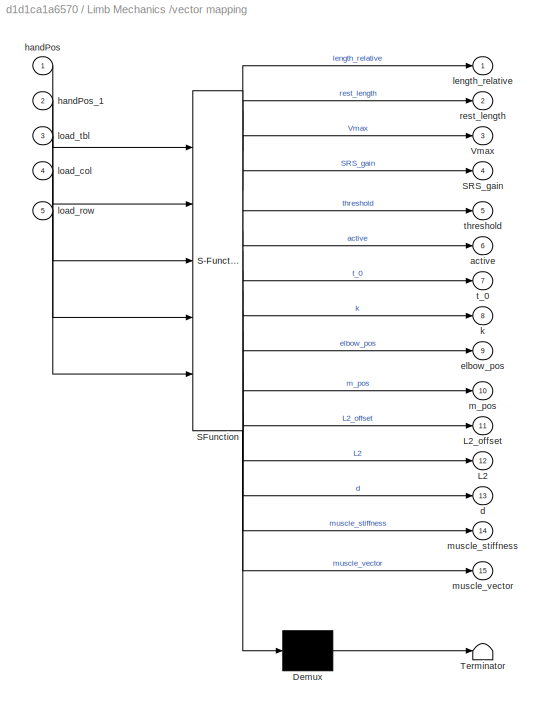
BLOCK [SubSystem] Limb Mechanics /vector mapping
  ErrorFcn = Stateflow.Translate.translate
  PermitHierarchicalResolution = ExplicitOnly
  Ports = [5, 15]
  RequestExecContextInheritance = off
  SFBlockType = MATLAB Function
  TreatAsAtomicUnit = on
BLOCK [Demux] Limb Mechanics /vector mapping/ Demux 
  Outputs = 1
  Ports = [1, 1]
BLOCK [S-Function] Limb Mechanics /vector mapping/ SFunction 
  EnableBusSupport = on
  FunctionName = sf_sfun
  PortCounts = [5 16]
  Ports = [5, 16]
  SFcnIsStateOwnerBlock = off
  SFunctionDeploymentMode = off
  Tag = Stateflow S-Function 3
BLOCK [Terminator] Limb Mechanics /vector mapping/ Terminator 
BLOCK [Outport] Limb Mechanics /vector mapping/L2
  IconDisplay = Port number
  Port = 12
BLOCK [Outport] Limb Mechanics /vector mapping/L2_offset
  IconDisplay = Port number
  Port = 11
BLOCK [Outport] Limb Mechanics /vector mapping/SRS_gain
  IconDisplay = Port number
  Port = 4
BLOCK [Outport] Limb Mechanics /vector mapping/Vmax
  IconDisplay = Port number
  Port = 3
BLOCK [Outport] Limb Mechanics /vector mapping/active
  IconDisplay = Port number
  Port = 6
BLOCK [Outport] Limb Mechanics /vector mapping/d
  IconDisplay = Port number
  Port = 13
BLOCK [Outport] Limb Mechanics /vector mapping/elbow_pos
  IconDisplay = Port number
  Port = 9
BLOCK [Inport] Limb Mechanics /vector mapping/handPos
  IconDisplay = Port number
BLOCK [Inport] Limb Mechanics /vector mapping/handPos_1
  IconDisplay = Port number
  Port = 2
BLOCK [Outport] Limb Mechanics /vector mapping/k
  IconDisplay = Port number
  Port = 8
BLOCK [Outport] Limb Mechanics /vector mapping/length_relative
  IconDisplay = Port number
BLOCK [Inport] Limb Mechanics /vector mapping/load_col
  IconDisplay = Port number
  Port = 4
BLOCK [Inport] Limb Mechanics /vector mapping/load_row
  IconDisplay = Port number
  Port = 5
BLOCK [Inport] Limb Mechanics /vector mapping/load_tbl
  IconDisplay = Port number
  Port = 3
BLOCK [Outport] Limb Mechanics /vector mapping/m_pos
  IconDisplay = Port number
  Port = 10
BLOCK [Outport] Limb Mechanics /vector mapping/muscle_stiffness
  IconDisplay = Port number
  Port = 14
BLOCK [Outport] Limb Mechanics /vector mapping/muscle_vector
  IconDisplay = Port number
  Port = 15
BLOCK [Outport] Limb Mechanics /vector mapping/rest_length
  IconDisplay = Port number
  Port = 2
BLOCK [Outport] Limb Mechanics /vector mapping/t_0
  IconDisplay = Port number
  Port = 7
BLOCK [Outport] Limb Mechanics /vector mapping/threshold
  IconDisplay = Port number
  Port = 5
BLOCK [Concatenate] Matrix Concatenate
  Mode = Multidimensional array
  NumInputs = 5
  Ports = [5, 1]
BLOCK [Memory] Memory
BLOCK [Reference] Muscle  REF=Video/Show_Target
  Ports = [2, 1]
  SourceBlock = Video/Show_Target
  SourceType = Show_Target
BLOCK [From] Only Show Spring If Task Is Running
  GotoTag = Run_Status
  TagVisibility = global
BLOCK [Reference] Parameter Table Defn  REF=General/Parameter Table Defn
  Ports = []
  SourceBlock = General/Parameter Table Defn
  UserDataPersistent = on
BLOCK [Reference] Process_Video_CMD  REF=Video/Process_Video_CMD
  Ports = [1]
  SourceBlock = Video/Process_Video_CMD
  SourceType = Process_Video_CMD
BLOCK [Selector] Select load row index
  IndexOptions = Index vector (dialog)
  Indices = LOAD
  OutputSizes = slselsubs([(-2),(-2)],1)
  Ports = [1, 1]
BLOCK [Selector] Select target row index
  IndexOptions = Index vector (dialog)
  Indices = MUSCLE
  OutputSizes = slselsubs([(-2),(-2)],1)
  Ports = [1, 1]
BLOCK [Selector] Select target row index1
  IndexOptions = Index vector (dialog)
  Indices = L1_LINE
  OutputSizes = slselsubs([(-2),(-2)],1)
  Ports = [1, 1]
BLOCK [Selector] Select target row index2
  IndexOptions = Index vector (dialog)
  Indices = L2_LINE
  OutputSizes = slselsubs([(-2),(-2)],1)
  Ports = [1, 1]
BLOCK [SubSystem] Trial Control
  ErrorFcn = Stateflow.Translate.translate
  PermitHierarchicalResolution = ExplicitOnly
  Ports = [3, 6, 0, 1]
  RequestExecContextInheritance = off
  SFBlockType = Chart
  TreatAsAtomicUnit = on
BLOCK [Demux] Trial Control/ Demux 
  Outputs = 1
  Ports = [1, 1]
BLOCK [S-Function] Trial Control/ SFunction 
  EnableBusSupport = on
  FunctionName = sf_sfun
  Parameters = E_HAND_OUT,E_START_TRIAL
  PortCounts = [4 7]
  Ports = [4, 7]
  SFcnIsStateOwnerBlock = off
  SFunctionDeploymentMode = off
  Tag = Stateflow S-Function 4
BLOCK [Terminator] Trial Control/ Terminator 
BLOCK [TriggerPort] Trial Control/ input events 
  Ports = [0, 1]
  ShowOutputPort = on
  TriggerType = either
  VariantControl = (inherit)
BLOCK [Inport] Trial Control/HandInTarget
  IconDisplay = Port number
  Port = 3
BLOCK [Outport] Trial Control/SRS_on
  IconDisplay = Port number
  Port = 3
BLOCK [Inport] Trial Control/StretchLength
  IconDisplay = Port number
BLOCK [Inport] Trial Control/Trial_Protocol
  IconDisplay = Port number
  Port = 2
BLOCK [Outport] Trial Control/e_Trial_End
  IconDisplay = Port number
  Port = 6
BLOCK [Outport] Trial Control/event_code
  IconDisplay = Port number
BLOCK [Outport] Trial Control/logging_enable
  IconDisplay = Port number
  Port = 4
BLOCK [Outport] Trial Control/targetA_row
  IconDisplay = Port number
  Port = 2
BLOCK [Outport] Trial Control/targetA_state
  IconDisplay = Port number
  Port = 5
BLOCK [SubSystem] Update L1 shank 
  ErrorFcn = Stateflow.Translate.translate
  PermitHierarchicalResolution = ExplicitOnly
  Ports = [3, 1]
  RequestExecContextInheritance = off
  SFBlockType = MATLAB Function
  TreatAsAtomicUnit = on
BLOCK [Demux] Update L1 shank / Demux 
  Outputs = 1
  Ports = [1, 1]
BLOCK [S-Function] Update L1 shank / SFunction 
  EnableBusSupport = on
  FunctionName = sf_sfun
  PortCounts = [3 2]
  Ports = [3, 2]
  SFcnIsStateOwnerBlock = off
  SFunctionDeploymentMode = off
  Tag = Stateflow S-Function 10
BLOCK [Terminator] Update L1 shank / Terminator 
BLOCK [Outport] Update L1 shank /VCODE
  IconDisplay = Port number
BLOCK [Inport] Update L1 shank /VCODE_IN
  IconDisplay = Port number
BLOCK [Inport] Update L1 shank /elbow_pos
  IconDisplay = Port number
  Port = 2
BLOCK [Inport] Update L1 shank /handPos
  IconDisplay = Port number
  Port = 3
BLOCK [SubSystem] Update position of L2 shank!
  ErrorFcn = Stateflow.Translate.translate
  PermitHierarchicalResolution = ExplicitOnly
  Ports = [3, 1]
  RequestExecContextInheritance = off
  SFBlockType = MATLAB Function
  TreatAsAtomicUnit = on
BLOCK [Demux] Update position of L2 shank!/ Demux 
  Outputs = 1
  Ports = [1, 1]
BLOCK [S-Function] Update position of L2 shank!/ SFunction 
  EnableBusSupport = on
  FunctionName = sf_sfun
  PortCounts = [3 2]
  Ports = [3, 2]
  SFcnIsStateOwnerBlock = off
  SFunctionDeploymentMode = off
  Tag = Stateflow S-Function 7
BLOCK [Terminator] Update position of L2 shank!/ Terminator 
BLOCK [Outport] Update position of L2 shank!/VCODE
  IconDisplay = Port number
BLOCK [Inport] Update position of L2 shank!/VCODE_IN
  IconDisplay = Port number
BLOCK [Inport] Update position of L2 shank!/elbow_pos
  IconDisplay = Port number
  Port = 2
BLOCK [Inport] Update position of L2 shank!/handPos
  IconDisplay = Port number
  Port = 3
BLOCK [SubSystem] Update position of spring image
  ErrorFcn = Stateflow.Translate.translate
  PermitHierarchicalResolution = ExplicitOnly
  Ports = [3, 1]
  RequestExecContextInheritance = off
  SFBlockType = MATLAB Function
  TreatAsAtomicUnit = on
BLOCK [Demux] Update position of spring image/ Demux 
  Outputs = 1
  Ports = [1, 1]
BLOCK [S-Function] Update position of spring image/ SFunction 
  EnableBusSupport = on
  FunctionName = sf_sfun
  PortCounts = [3 2]
  Ports = [3, 2]
  SFcnIsStateOwnerBlock = off
  SFunctionDeploymentMode = off
  Tag = Stateflow S-Function 1
BLOCK [Terminator] Update position of spring image/ Terminator 
BLOCK [Outport] Update position of spring image/VCODE
  IconDisplay = Port number
BLOCK [Inport] Update position of spring image/VCODE_IN
  IconDisplay = Port number
BLOCK [Inport] Update position of spring image/handPos
  IconDisplay = Port number
  Port = 3
BLOCK [Inport] Update position of spring image/m_pos
  IconDisplay = Port number
  Port = 2
BLOCK [SubSystem] calibration target hold
  Ports = [3, 1]
  RequestExecContextInheritance = off
BLOCK [Reference] calibration target hold/Counter Free-Running (ms)  REF=simulink/Sources/Counter
Free-Running
  Ports = [0, 1]
  SourceBlock = simulink/Sources/Counter\nFree-Running
  SourceProductBaseCode = SL
  SourceProductName = Simulink
  SourceType = Counter Free-Running
BLOCK [DataTypeConversion] calibration target hold/Data Type Conversion
  RndMeth = Floor
  SaturateOnIntegerOverflow = off
BLOCK [SubSystem] calibration target hold/Embedded MATLAB Function
  ErrorFcn = Stateflow.Translate.translate
  PermitHierarchicalResolution = ExplicitOnly
  Ports = [3, 1]
  RequestExecContextInheritance = off
  SFBlockType = MATLAB Function
  TreatAsAtomicUnit = on
BLOCK [Demux] calibration target hold/Embedded MATLAB Function/ Demux 
  Outputs = 1
  Ports = [1, 1]
BLOCK [S-Function] calibration target hold/Embedded MATLAB Function/ SFunction 
  EnableBusSupport = on
  FunctionName = sf_sfun
  PortCounts = [3 2]
  Ports = [3, 2]
  SFcnIsStateOwnerBlock = off
  SFunctionDeploymentMode = off
  Tag = Stateflow S-Function 8
BLOCK [Terminator] calibration target hold/Embedded MATLAB Function/ Terminator 
BLOCK [Inport] calibration target hold/Embedded MATLAB Function/SRS_state
  IconDisplay = Port number
  Port = 2
BLOCK [Inport] calibration target hold/Embedded MATLAB Function/VCODE_IN
  IconDisplay = Port number
BLOCK [Outport] calibration target hold/Embedded MATLAB Function/VCODE_OUT
  IconDisplay = Port number
BLOCK [Inport] calibration target hold/Embedded MATLAB Function/target
  IconDisplay = Port number
  Port = 3
BLOCK [From] calibration target hold/From
  CloseFcn = tagdialog Close
  GotoTag = Target_Table
  TagVisibility = global
BLOCK [Gain] calibration target hold/Gain (convert to seconds)
  Gain = .001
  OutDataTypeStr = Inherit: Inherit via internal rule
  ParamDataTypeStr = Inherit: Inherit via internal rule
  SaturateOnIntegerOverflow = off
BLOCK [Inport] calibration target hold/SRS_state
  IconDisplay = Port number
  Port = 2
BLOCK [Selector] calibration target hold/Selector
  IndexOptions = Index vector (port),Select all
  Indices = 1,-1
  InputPortWidth = 3
  NumberOfDimensions = 2
  OutputSizes = 1
  Ports = [2, 1]
BLOCK [Inport] calibration target hold/Target_Row
  IconDisplay = Port number
BLOCK [Terminator] calibration target hold/Terminator
BLOCK [Outport] calibration target hold/VCODE
  IconDisplay = Port number
BLOCK [Inport] calibration target hold/VCODE_IN 
  IconDisplay = Port number
  Port = 3
BLOCK [SubSystem] hand position
  Ports = [0, 4]
  RequestExecContextInheritance = off
BLOCK [BusSelector] hand position/Bus Selector
  OutputAsBus = off
  OutputSignals = Robot1.a1_hand_position,Robot2.a2_hand_position,Robot1.a1_force_sensor_force_xyz,Robot1.a1_hand_velocities
  Ports = [1, 4]
BLOCK [BusSelector] hand position/Bus Selector1
  OutputAsBus = off
  OutputSignals = robot_count
  Ports = [1, 1]
BLOCK [From] hand position/From1
  CloseFcn = tagdialog Close
  GotoTag = KINARM_Lab_info_bus
  TagVisibility = global
BLOCK [From] hand position/From2
  CloseFcn = tagdialog Close
  GotoTag = KINdata_bus
  TagVisibility = global
BLOCK [From] hand position/From3
  CloseFcn = tagdialog Close
  GotoTag = Task_Wide_Parameters
  TagVisibility = global
BLOCK [SubSystem] hand position/Get Hand Positions
  ErrorFcn = Stateflow.Translate.translate
  PermitHierarchicalResolution = ExplicitOnly
  Ports = [6, 4]
  RequestExecContextInheritance = off
  SFBlockType = MATLAB Function
  TreatAsAtomicUnit = on
BLOCK [Demux] hand position/Get Hand Positions/ Demux 
  Outputs = 1
  Ports = [1, 1]
BLOCK [S-Function] hand position/Get Hand Positions/ SFunction 
  EnableBusSupport = on
  FunctionName = sf_sfun
  Parameters = SPRING_X,SPRING_Y
  PortCounts = [6 5]
  Ports = [6, 5]
  SFcnIsStateOwnerBlock = off
  SFunctionDeploymentMode = off
  Tag = Stateflow S-Function 2
BLOCK [Terminator] hand position/Get Hand Positions/ Terminator 
BLOCK [Outport] hand position/Get Hand Positions/FS
  IconDisplay = Port number
  Port = 2
BLOCK [Inport] hand position/Get Hand Positions/TWP
  IconDisplay = Port number
  Port = 6
BLOCK [Inport] hand position/Get Hand Positions/a1_hand_velocities
  IconDisplay = Port number
  Port = 3
BLOCK [Outport] hand position/Get Hand Positions/act_condition
  IconDisplay = Port number
  Port = 4
BLOCK [Inport] hand position/Get Hand Positions/force_sensor
  IconDisplay = Port number
  Port = 5
BLOCK [Outport] hand position/Get Hand Positions/handPos
  IconDisplay = Port number
BLOCK [Inport] hand position/Get Hand Positions/handPos1
  IconDisplay = Port number
BLOCK [Inport] hand position/Get Hand Positions/handPos2
  IconDisplay = Port number
  Port = 2
BLOCK [Outport] hand position/Get Hand Positions/handVel
  IconDisplay = Port number
  Port = 3
BLOCK [Inport] hand position/Get Hand Positions/robotCount
  IconDisplay = Port number
  Port = 4
BLOCK [Outport] hand position/Output
  IconDisplay = Port number
  Port = 3
BLOCK [Outport] hand position/act_condition
  IconDisplay = Port number
  Port = 4
BLOCK [Outport] hand position/handPos
  IconDisplay = Port number
BLOCK [Outport] hand position/handVel
  IconDisplay = Port number
  Port = 2
ANNOTATION (root): Demo to show how to create mechanical and visual muscle
ANNOTATION (root): This set of blocks creates the graphics: a muscle, two limbs, and a moving target
ANNOTATION (root): This set of blocks creates the loads required to feel like a Muscle.
ANNOTATION KINARM_HandInTarget: <copyright redacted>
LINE Circle:1 -> calibration target hold:3
LINE Forces_to_Torques:1 -> KINARM_Exo_Apply_Loads:1
LINE From:1 -> Trial Control:1
LINE GUI Control:1 -> Trial Control:trigger
NET GUI Control:2 -> Select load row index:1, Select target row index1:1, Select target row index2:1, Select target row index:1, Trial Control:2
LINE Hand_Feedback:1 -> Matrix Concatenate:4
LINE KINARM_HandInTarget:1 -> Trial Control:3
LINE L1 Line:1 -> Update L1 shank :1
LINE L2 Line:1 -> Update position of L2 shank!:1
NET Limb Mechanics :1 -> Forces_to_Torques:1, KINARM_EP_Apply_Loads:1
LINE Limb Mechanics :2 -> Update position of spring image:2
NET Limb Mechanics :3 -> Update L1 shank :2, Update position of L2 shank!:2
LINE Limb Mechanics :4 -> DataLogging:3
LINE Matrix Concatenate:1 -> Process_Video_CMD:1
LINE Memory:1 -> KINARM_HandInTarget:1
LINE Muscle:1 -> Update position of spring image:1
NET Only Show Spring If Task Is Running:1 -> L1 Line:2, L2 Line:2, Muscle:2
LINE Select load row index:1 -> Limb Mechanics :1
LINE Select target row index1:1 -> L1 Line:1
LINE Select target row index2:1 -> L2 Line:1
LINE Select target row index:1 -> Muscle:1
LINE Trial Control:1 -> DataLogging:2
NET Trial Control:2 -> Circle:1, calibration target hold:1
NET Trial Control:3 -> Goto4:1, calibration target hold:2
LINE Trial Control:4 -> DataLogging:1
LINE Trial Control:5 -> Circle:2
LINE Trial Control:6 -> GUI Control:1
LINE Update L1 shank :1 -> Matrix Concatenate:1
LINE Update position of L2 shank!:1 -> Matrix Concatenate:5
LINE Update position of spring image:1 -> Matrix Concatenate:2
LINE calibration target hold/Counter Free-Running (ms):1 -> calibration target hold/Data Type Conversion:1
LINE calibration target hold/Data Type Conversion:1 -> calibration target hold/Gain (convert to seconds):1
LINE calibration target hold/Embedded MATLAB Function:1 -> calibration target hold/VCODE:1
LINE calibration target hold/From:1 -> calibration target hold/Selector:1
LINE calibration target hold/Gain (convert to seconds):1 -> calibration target hold/Terminator:1
LINE calibration target hold/SRS_state:1 -> calibration target hold/Embedded MATLAB Function:2
LINE calibration target hold/Selector:1 -> calibration target hold/Embedded MATLAB Function:3
LINE calibration target hold/Target_Row:1 -> calibration target hold/Selector:2
LINE calibration target hold/VCODE_IN :1 -> calibration target hold/Embedded MATLAB Function:1
NET calibration target hold:1 -> Matrix Concatenate:3, Memory:1
LINE hand position/Bus Selector1:1 -> hand position/Get Hand Positions:4
LINE hand position/Bus Selector:1 -> hand position/Get Hand Positions:1
LINE hand position/Bus Selector:2 -> hand position/Get Hand Positions:2
LINE hand position/Bus Selector:3 -> hand position/Get Hand Positions:5
LINE hand position/Bus Selector:4 -> hand position/Get Hand Positions:3
LINE hand position/From1:1 -> hand position/Bus Selector1:1
LINE hand position/From2:1 -> hand position/Bus Selector:1
LINE hand position/From3:1 -> hand position/Get Hand Positions:6
LINE hand position/Get Hand Positions:1 -> hand position/handPos:1
LINE hand position/Get Hand Positions:2 -> hand position/Output:1
LINE hand position/Get Hand Positions:3 -> hand position/handVel:1
LINE hand position/Get Hand Positions:4 -> hand position/act_condition:1
NET hand position:1 -> Goto:1, Update L1 shank :3, Update position of L2 shank!:3, Update position of spring image:3
LINE hand position:2 -> Goto2:1
LINE hand position:3 -> Goto1:1
LINE hand position:4 -> Goto5:1
note: NET lines group one-source signal fan-out (src -> all destinations, sorted); 1:1 wires keep LINE
CHART Update position of spring image states=1 transitions=1
  STATE_LABEL 'eML_blk_kernel()'
  STATE_LABEL "SCRIPT:\nfunction VCODE = update_position(VCODE_IN, m_pos, handPos)\n\n% This function takes a VCODE that draws a line and updates the starting and end-point of the line\n% In this particular instance however, the 'line' will have a graphic pasted over it.\n\nVCODE = VCODE_IN;\n\nhandPos1 = handPos(1, :);  %EP Hand position\nhandPos2 = handPos(2, :); %origin \n\n% update VCODE starting and endpoint positions...<+211ch>"
CHART hand position/Get Hand Positions states=1 transitions=1
  STATE_LABEL 'eML_blk_kernel()'
  STATE_LABEL 'SCRIPT:\nfunction [handPos, FS, handVel, act_condition] = get_hand_position(handPos1, handPos2, a1_hand_velocities, robotCount, force_sensor, TWP, SPRING_X, SPRING_Y)\n\n% For bilateral Kinarms, draw the spring between the two hands/handles.\n% For unilateral Kinarms, grab the origin of the spring from the Task Wide Parameters.\n\nif robotCount == 1\n\thandPos2 = [TWP(SPRING_X), TWP(SPRING_Y)];\nend\n\nact_c...<+113ch>'
CHART Limb Mechanics
/vector mapping states=1 transitions=1
  STATE_LABEL 'eML_blk_kernel()'
  STATE_LABEL 'SCRIPT:\nfunction [length_relative,rest_length, Vmax, SRS_gain, threshold, active, t_0, k,elbow_pos,m_pos, L2_offset, L2, d,  muscle_stiffness, muscle_vector] = length_velocity(handPos, handPos_1, load_tbl, load_col, load_row)\n\n%The resting length, spring constant and force limit are passed in via the load table.\nrest_length = 0.2;\t\t\t\t%  default rest length (m)\nt_0 = 0;\t\t\t% resting tension in muscl...<+3608ch>'
CHART Trial Control states=10 transitions=21
  STATE_LABEL 'Initialize/\n% If there was something to initialize\n% do it here\nentry: logging_enable = 0;\n targetA_state = 0;\n hand_out = Trial_Protocol(HAND_OUT_TIME);\n SRS_on = 0;\n targetA_row = Trial_Protocol(TARGET_1)\n trialTime  = Trial_Protocol(DURATION)\n'
  STATE_LABEL 'MainTrial\nentry:  '
  STATE_LABEL 'HandOutStill/\n% Turn on first target and set to initial color\nentry: logging_enable  = 1;\n targetA_row = Trial_Protocol(TARGET_1)\n targetA_state = 1;\n trialTime = Trial_Protocol(DURATION); %redundant here for posterity\n'
  STATE_LABEL 'srsOff_hand_in_moving/\nentry: SRS_on = 2;\n moving =1;\n targetA_state = 2;\nexit:\ntime = time + temporalCount(msec)\n'
  STATE_LABEL 'EndOfTrial/\n% Turn off the target, set the post-trial delay\nentry: logging_enable = 0;\n targetA_state = 0;\n event_code = E_END_TRIAL\n tickCount = Trial_Protocol(DELAY_POST_TRIAL);'
  STATE_LABEL 'srsOn_hand_in_moving/\nentry: SRS_on = 1;\n moving= 1;\n targetA_state=2; %move target\n event_code = E_SRS_ON;\nexit:\ntime = time + temporalCount(msec)\n%SRS_active!'
  STATE_LABEL "HoldTarget/\n\nentry: logging_enable = 1;\n event_code = E_TARGET_REACHED;\n moving = 0;\n targetA_state = 2;\n time = 0;\n %enter 'moving' target state!"
  STATE_LABEL 'srsOff_hand_out_moving/\nentry: SRS_on = 2; %SRS complete\n moving =1;\n targetA_state = 1;\nexit:\n time = time + temporalCount(msec);'
  STATE_LABEL 'srsOn_hand_out_moving/\nentry: SRS_on = 1;\n targetA_state=1;\n moving = 1;\n event_code = E_SRS_ON;\n %SRS_active!\nexit:\n time = time + temporalCount(msec);\n'
  STATE_LABEL '[HandInTarget(targetA_row)==0]'
  STATE_LABEL '% value == 0 indicates "not in target"\n% value == 1 indicates "in target"\n[HandInTarget(targetA_row) == 1]'
  STATE_LABEL '[time >= trialTime]'
  STATE_LABEL '[time >= trialTime]'
  STATE_LABEL '[time >= trialTime]'
  STATE_LABEL 'after(trialTime, msec)'
  STATE_LABEL 'after(trialTime, msec)'
  STATE_LABEL '[HandInTarget(targetA_row)==0]'
  STATE_LABEL '[abs(StretchLength) > 0.3 & HandInTarget(targetA_row)==1]'
  STATE_LABEL '[HandInTarget(targetA_row)==1]'
  STATE_LABEL '[abs(StretchLength) > 0.03 & HandInTarget(targetA_row)==1]'
  STATE_LABEL '[time >= trialTime]'
  STATE_LABEL '[abs(StretchLength) <= 0.03 & HandInTarget(targetA_row)==0]'
  STATE_LABEL 'after(2000,msec)'
  STATE_LABEL '[abs(StretchLength) > 0.03 & HandInTarget(targetA_row)==0]'
  STATE_LABEL '[abs(StretchLength) > 0.03 & HandInTarget(targetA_row)==0]'
  STATE_LABEL 'HandOutStill/\n% Turn on first target and set to initial color\nentry: logging_enable  = 1;\n targetA_row = Trial_Protocol(TARGET_1)\n targetA_state = 1;\n trialTime = Trial_Protocol(DURATION); %redundant here for posterity\n'
  STATE_LABEL 'srsOff_hand_in_moving/\nentry: SRS_on = 2;\n moving =1;\n targetA_state = 2;\nexit:\ntime = time + temporalCount(msec)\n'
  STATE_LABEL 'EndOfTrial/\n% Turn off the target, set the post-trial delay\nentry: logging_enable = 0;\n targetA_state = 0;\n event_code = E_END_TRIAL\n tickCount = Trial_Protocol(DELAY_POST_TRIAL);'
  STATE_LABEL 'srsOn_hand_in_moving/\nentry: SRS_on = 1;\n moving= 1;\n targetA_state=2; %move target\n event_code = E_SRS_ON;\nexit:\ntime = time + temporalCount(msec)\n%SRS_active!'
  STATE_LABEL "HoldTarget/\n\nentry: logging_enable = 1;\n event_code = E_TARGET_REACHED;\n moving = 0;\n targetA_state = 2;\n time = 0;\n %enter 'moving' target state!"
  STATE_LABEL 'srsOff_hand_out_moving/\nentry: SRS_on = 2; %SRS complete\n moving =1;\n targetA_state = 1;\nexit:\n time = time + temporalCount(msec);'
  STATE_LABEL 'srsOn_hand_out_moving/\nentry: SRS_on = 1;\n targetA_state=1;\n moving = 1;\n event_code = E_SRS_ON;\n %SRS_active!\nexit:\n time = time + temporalCount(msec);\n'
  STATE_LABEL 'Inter_Trial_State/\n% Turn off target, reset the event code, and send the\n%e_Trial_End Stateflow event to indicate that the trial is over.\nentry: event_code = 0;\n targetA_state = 0;\n moving = 0;\n SRS_on = 0;\n time = 0;\n trialTime = Trial_Protocol(DURATION) % LOAD NEW TRIAL DATA\n e_Trial_End;'
CHART Limb Mechanics
/Integrate Signals states=1 transitions=1
  STATE_LABEL 'eML_blk_kernel()'
  STATE_LABEL 'SCRIPT:\nfunction [hand_forces, out_angle, force_muscle] = hill_forces(t_0, rest_length, Force, L2_offset, force_SRS, d, L2, spring_constant, FS, muscle_vector)\n% spring_force = spring_constant * (rest_length - spring_length);\n% spring_force = max( min(spring_force, force_limit), -force_limit);\t\t\t\t\t% limit the spring force magnitude\n% F_x = spring_force * (spring_vector(1) / spring_length);\t\t% comp...<+2269ch>'
CHART Limb Mechanics
/make vector
 states=1 transitions=1
  STATE_LABEL 'eML_blk_kernel()'
  STATE_LABEL "SCRIPT:\nfunction [fla_len_out,fla_f_out,flp_len_out,flp_f_out,fv_v_out,fv_f_out, srs_len_out, srs_f_out] = make_vector(fla,flp, fv, srs)\n\npersistent fla_len fla_f flp_len flp_f fv_v fv_f srs_len srs_f n;\n\nif isempty(n)\n    n = 1;\nend\n\nvector_lengths = [19, 15, 41, 20];\n\n%     fla_len_out = [1:19]';\n%     fla_f_out = zeros(19,1);\n%     flp_len_out = [1:15]';\n%     flp_f_out = zeros(15,1);\n%     fv_...<+2038ch>"
CHART Update position of L2 shank! states=1 transitions=1
  STATE_LABEL 'eML_blk_kernel()'
  STATE_LABEL "SCRIPT:\nfunction VCODE = update_position(VCODE_IN, elbow_pos, handPos)\n\n% This function takes a VCODE that draws a line and updates the starting and end-point of the line\n% In this particular instance however, the 'line' will have a graphic pasted over it.\n\nVCODE = VCODE_IN;\n\nhandPos1 = handPos(1, :);  %EP Hand position\nhandPos2 = handPos(2, :); %TWP(SPRING_X), TWP(SPRING_Y) in get_hand_pos\n\n% upd...<+277ch>"
CHART calibration target hold/Embedded
MATLAB Function states=1 transitions=1
  STATE_LABEL 'eML_blk_kernel()'
  STATE_LABEL 'SCRIPT:\nfunction VCODE_OUT  = fcn(VCODE_IN, SRS_state, target)\n%#eml\n% This embedded matlab function replaces the X and Y locations of the target with constantly updated \n% positions so that the target moves in a circle in rhythm with a sine\n% function\n\npersistent moving move_counter\n\nif isempty(moving)\n    moving = 0;\nend\nif isempty(move_counter)\n    move_counter = 0;\nend\n\nif moving == 1\n    if S...<+2234ch>'
CHART KINARM_HandInTarget/Embedded
MATLAB InsideTarget states=1 transitions=1
  STATE_LABEL 'eML_blk_kernel()'
  STATE_LABEL 'SCRIPT:\nfunction intarget = FIsInsideTarget(handpos, VCODE_IN, target_type, attribcol, num_targets, Target_Table)\n% all dimensions in m, rad\n% arguments:\n% handpos: x,y positions of center of target\n% attribcol: columns in target table specifying target attributes.  \n% Specific to Target_Type\n%\tcircle:\n%\t[X0,Y0,r...,rn] where:\n%\tX0,Y0 : centre of circle\n%\tr : logical radius of circle (i.e. radius ...<+3608ch>'
CHART Update L1 shank
 states=1 transitions=1
  STATE_LABEL 'eML_blk_kernel()'
  STATE_LABEL "SCRIPT:\nfunction VCODE = update_position(VCODE_IN, elbow_pos, handPos)\n\n% This function takes a VCODE that draws a line and updates the starting and end-point of the line\n% In this particular instance however, the 'line' will have a graphic pasted over it.\n\nVCODE = VCODE_IN;\n\nhandPos1 = handPos(1, :);  %EP Hand position\nhandPos2 = handPos(2, :); %TWP(SPRING_X), TWP(SPRING_Y) in get_hand_pos\n\n% upd...<+278ch>"
CHART Limb Mechanics
/Spring Force Channel L2 states=1 transitions=1
  STATE_LABEL 'eML_blk_kernel()'
  STATE_LABEL 'SCRIPT:\nfunction [forces, muscle_on]  = forceChannel(handPos, hand_velocity, load_tbl, load_col, L2, elbow_position)\n\n    persistent lastHandPosition\n    if isempty(lastHandPosition),\t\tlastHandPosition = zeros(1,2);\tend\n    \n\tforces = zeros(1, 4);\n  \n    hand_position = handPos(1, :);% instantaneous hand position (x,y)\n    %hand2_pos = handPos(2, :); % instantaneous hand position (x, y) UNUSED\n   ...<+1791ch>'
CHART Limb Mechanics
/Activation, SRS, Muscle Stiffness states=1 transitions=1
  STATE_LABEL 'eML_blk_kernel()'
  STATE_LABEL 'SCRIPT:\nfunction [activation, stretch_length, SRS_switch] = forward_control(length_relative, threshold, SRS_on, active, condition, velocity, delay_velocity, reflex_gain)\n\npersistent rest_length start_flag\n%given the condition, the velocity and the active level of activation,\n%output either zero or the active activation\n\nif isempty(rest_length)\n    rest_length = 1;\nend\nif isempty(start_flag)\n    st...<+1878ch>'
CHART Limb Mechanics
/Force Channel WALL states=1 transitions=1
  STATE_LABEL 'eML_blk_kernel()'
  STATE_LABEL 'SCRIPT:\nfunction forces = forceChannel(hand_position, hand_velocity, loadTable, enable_forces)\n\n\tpersistent lastForcesEnabledValue forceEnableTime clockCycle outsideChannel lastHandPosition;\n\t\n\tif isempty(lastForcesEnabledValue), lastForcesEnabledValue = 0;\t\tend\n\tif isempty(forceEnableTime),        forceEnableTime = 1;\t\t\tend\n\tif isempty(clockCycle),\t\t\t\tclockCycle = 0;\t\t\t\t\tend\n\tif isempty(outsideCh...<+3608ch>'
CHART Limb Mechanics
/Constant Loads states=1 transitions=1
  STATE_LABEL 'eML_blk_kernel()'
  STATE_LABEL 'SCRIPT:\nfunction hand_forces  = const_loads(handPos, load_tbl, load_col, load_row)\n%\n% MULTI-PURPOSE SPRING between 2 hands\n%\n% Cleaned up for demo purposes, May 2013.\n\n%The resting length, spring constant and force limit are passed in via the load table.\nrest_length = 0;\t\t\t\t% default rest length (m)\nspring_constant = 0;\t\t\t% default spring constant (N/m)\nforce_limit = 20;\t\t\t\t% default force limit ...<+1314ch>'
